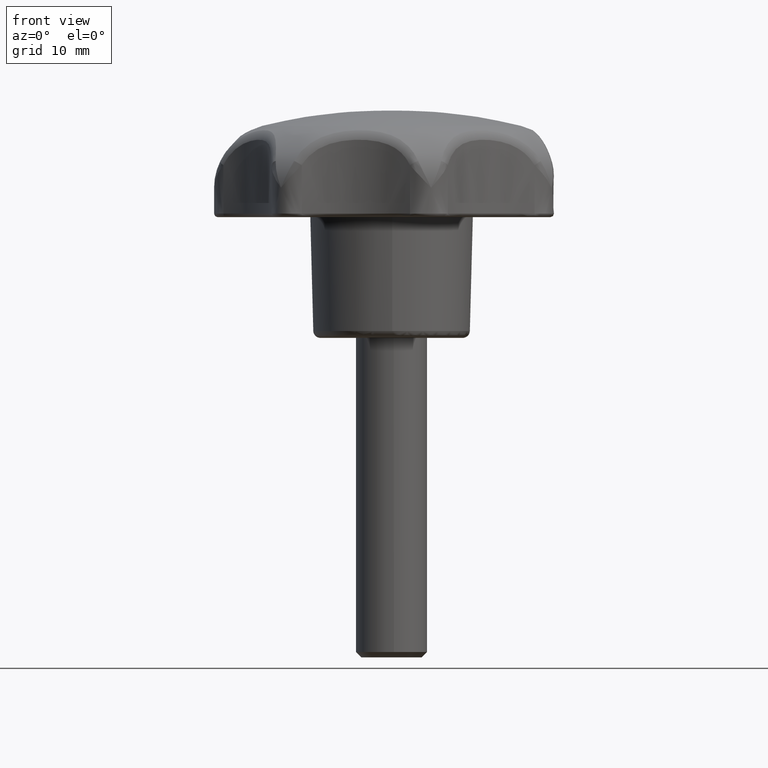
[diagram: clean part render]
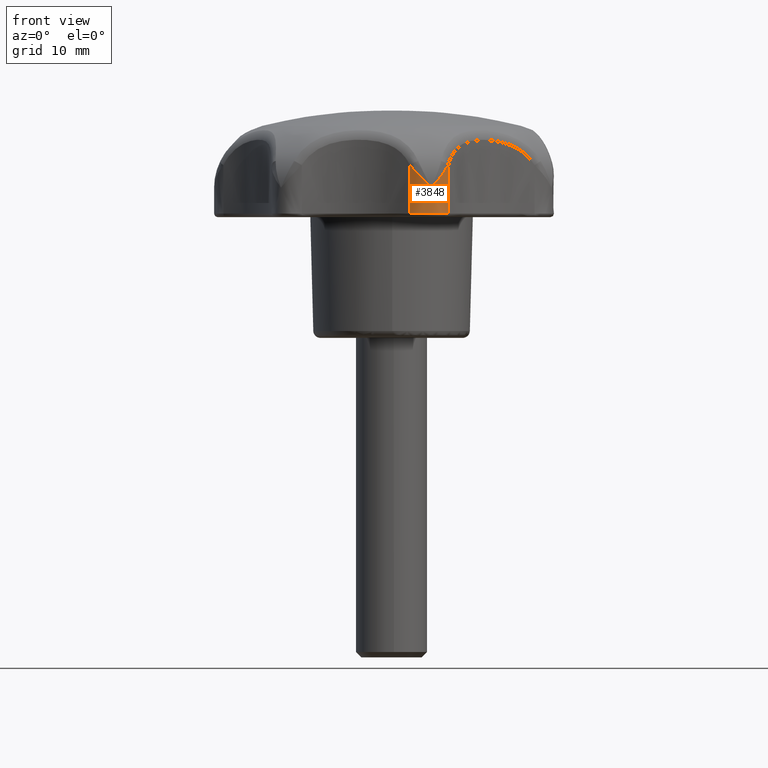
[diagram: same view with one face highlighted and labeled with its STEP entity id]
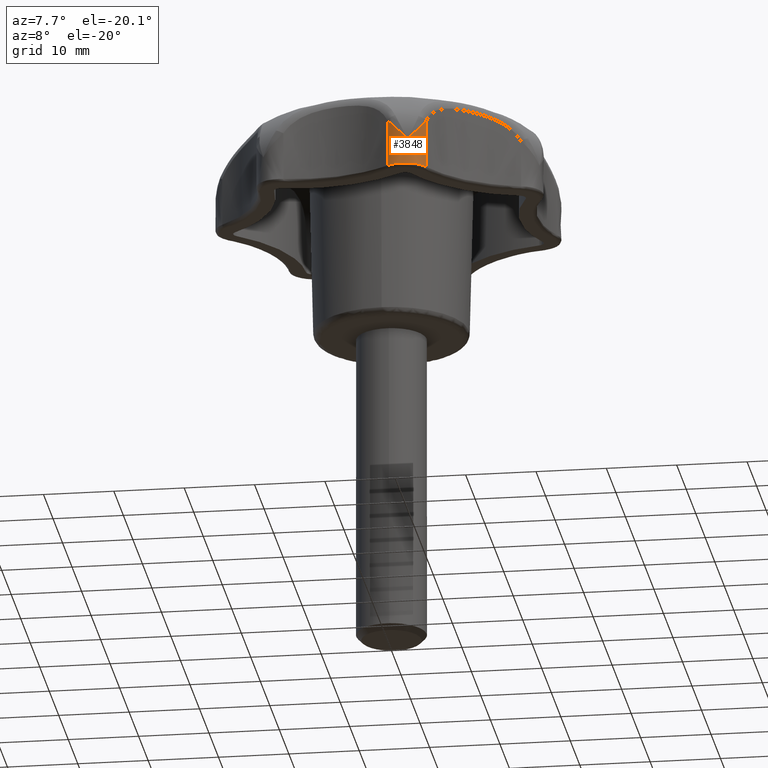
[diagram: same view with one face highlighted and labeled with its STEP entity id]
A machine part, front view. The second image highlights one B-rep face of the part: STEP entity #3848.
A second angle (auxiliary view) of the same face is appended — the face is thin or edge-on in the first view.
In plain terms, the highlighted face is a freeform B-spline surface patch.
Its self-contained STEP definition (entity closure, byte-faithful):
#3498=CARTESIAN_POINT('',(7.937591416701769,-22.479542615013202,24.301414836379049));
#3499=VERTEX_POINT('',#3498);
#3559=CARTESIAN_POINT('',(7.937591416701769,-22.479542615013202,17.500000000000000));
#3560=VERTEX_POINT('',#3559);
#3561=CARTESIAN_POINT('',(7.937591416701769,-22.479542615013202,24.301414836379049));
#3562=CARTESIAN_POINT('',(7.937591416701769,-22.479542615013202,17.500000000000000));
#3563=QUASI_UNIFORM_CURVE('',1,(#3561,#3562),.UNSPECIFIED.,.F.,.U.);
#3564=EDGE_CURVE('',#3499,#3560,#3563,.T.);
#3756=CARTESIAN_POINT('',(2.524432075677386,-23.633673129731669,24.471450207288530));
#3757=CARTESIAN_POINT('',(2.524432075677386,-23.633673129731669,17.325713744817779));
#3758=CARTESIAN_POINT('',(6.267646837527535,-26.798533926042087,24.471450207288527));
#3759=CARTESIAN_POINT('',(6.267646837527535,-26.798533926042087,17.325713744817783));
#3760=CARTESIAN_POINT('',(8.045799527634413,-22.230583223153417,24.471450207288523));
#3761=CARTESIAN_POINT('',(8.045799527634413,-22.230583223153417,17.325713744817786));
#3769=(BOUNDED_SURFACE()B_SPLINE_SURFACE(1,2,((#3756,#3758,#3760),(#3757,#3759,#3761)),.UNSPECIFIED.,.F.,.F.,.U.)B_SPLINE_SURFACE_WITH_KNOTS((2,2),(3,3),(0.0,7.145736462470748),(0.0,7.206219539010657),.UNSPECIFIED.)GEOMETRIC_REPRESENTATION_ITEM()RATIONAL_B_SPLINE_SURFACE(((1.0,0.580950307360235,0.999505588536704),(1.0,0.580950307360235,0.999505588536704)))REPRESENTATION_ITEM('')SURFACE());
#3770=ORIENTED_EDGE('',*,*,#3564,.F.);
#3771=CARTESIAN_POINT('',(5.563023274532561,-24.373197756430201,21.138975563360098));
#3772=VERTEX_POINT('',#3771);
#3773=CARTESIAN_POINT('',(7.937591416701769,-22.479542615013202,24.301414836379049));
#3774=CARTESIAN_POINT('',(7.817655866900119,-22.728591032010080,24.050994489077869));
#3775=CARTESIAN_POINT('',(7.672268808464517,-22.955769577768510,23.797851001752001));
#3776=CARTESIAN_POINT('',(7.422270986947305,-23.264890779489662,23.411183465691732));
#3777=CARTESIAN_POINT('',(7.333569711285456,-23.362623445612819,23.281137779937289));
#3778=CARTESIAN_POINT('',(7.192896523837884,-23.501129397620709,23.083959858459039));
#3779=CARTESIAN_POINT('',(7.144712872860751,-23.545956881529651,23.017858999730912));
#3780=CARTESIAN_POINT('',(7.046441600763751,-23.632381178277068,22.885662384806970));
#3781=CARTESIAN_POINT('',(6.996287158933834,-23.674046898908230,22.819471339789470));
#3782=CARTESIAN_POINT('',(6.842904361732273,-23.794434405696620,22.620529660581251));
#3783=CARTESIAN_POINT('',(6.736761843585475,-23.868554441039329,22.487410876636741));
#3784=CARTESIAN_POINT('',(6.517286037280082,-24.004479879262298,22.219711398183229));
#3785=CARTESIAN_POINT('',(6.403823989571428,-24.066321422706579,22.084992898886949));
#3786=CARTESIAN_POINT('',(6.171738304086106,-24.176731552788041,21.815416987628041));
#3787=CARTESIAN_POINT('',(6.052916736947560,-24.225420288535108,21.680319545772441));
#3788=CARTESIAN_POINT('',(5.871397837285256,-24.288426967378889,21.477408435386710));
#3789=CARTESIAN_POINT('',(5.810339419564179,-24.307759543092320,21.409722370886030));
#3790=CARTESIAN_POINT('',(5.718054850120627,-24.334218322478300,21.308169639537180));
#3791=CARTESIAN_POINT('',(5.687175236371163,-24.342615196037691,21.274312351096729));
#3792=CARTESIAN_POINT('',(5.625200098648212,-24.358558366140201,21.206595916845441));
#3793=CARTESIAN_POINT('',(5.593851009238892,-24.366161462141950,21.172641337431550));
#3794=CARTESIAN_POINT('',(5.563023260411490,-24.373197694561750,21.138975563360152));
#3795=B_SPLINE_CURVE_WITH_KNOTS('',3,(#3773,#3774,#3775,#3776,#3777,#3778,#3779,#3780,#3781,#3782,#3783,#3784,#3785,#3786,#3787,#3788,#3789,#3790,#3791,#3792,#3793,#3794),.UNSPECIFIED.,.F.,.U.,(4,2,2,2,2,2,2,2,2,2,4),(0.0,0.250000000000001,0.375000000000000,0.437500000000000,0.499999999999999,0.625000000000000,0.750000000000002,0.875000000000003,0.937500000000003,0.968750000000001,1.0),.UNSPECIFIED.);
#3796=EDGE_CURVE('',#3499,#3772,#3795,.T.);
#3797=ORIENTED_EDGE('',*,*,#3796,.T.);
#3798=CARTESIAN_POINT('',(2.601986538722750,-23.697360399521848,24.301413324988498));
#3799=VERTEX_POINT('',#3798);
#3800=CARTESIAN_POINT('',(5.563023274532561,-24.373197756430201,21.138975563360098));
#3801=CARTESIAN_POINT('',(5.532195519415103,-24.380233925194201,21.172641328880019));
#3802=CARTESIAN_POINT('',(5.500652114124204,-24.386985630760350,21.206595899650850));
#3803=CARTESIAN_POINT('',(5.437896978146154,-24.399511332277658,21.274312316718170));
#3804=CARTESIAN_POINT('',(5.406432148632210,-24.405344171580520,21.308169596564898));
#3805=CARTESIAN_POINT('',(5.311806614613941,-24.421546405860258,21.409722302157778));
#3806=CARTESIAN_POINT('',(5.248406807129870,-24.430620610297201,21.477408349522751));
#3807=CARTESIAN_POINT('',(5.057526405298966,-24.452611651871461,21.680319408474489));
#3808=CARTESIAN_POINT('',(4.929346654510943,-24.460299365339282,21.815416816514869));
#3809=CARTESIAN_POINT('',(4.672339583659102,-24.461521493238230,22.084992659297971));
#3810=CARTESIAN_POINT('',(4.543281803623437,-24.455033535452390,22.219711125020758));
#3811=CARTESIAN_POINT('',(4.286565160927586,-24.427795958072871,22.487410537900050));
#3812=CARTESIAN_POINT('',(4.158774609808122,-24.407069643692100,22.620529289130090));
#3813=CARTESIAN_POINT('',(3.968347349268292,-24.365154581341770,22.819470919108820));
#3814=CARTESIAN_POINT('',(3.905081695188530,-24.349376272519169,22.885661947690000));
#3815=CARTESIAN_POINT('',(3.779044271555911,-24.314149003895938,23.017858529639572));
#3816=CARTESIAN_POINT('',(3.716182400468011,-24.294666952733081,23.083959372017759));
#3817=CARTESIAN_POINT('',(3.529344796219148,-24.230913252537270,23.281137249508362));
#3818=CARTESIAN_POINT('',(3.407023118124390,-24.181345235697979,23.411182906140588));
#3819=CARTESIAN_POINT('',(3.047660269582023,-24.011306752413638,23.797850354988331));
#3820=CARTESIAN_POINT('',(2.818102018807840,-23.869707121788331,24.050993784431331));
#3821=CARTESIAN_POINT('',(2.601986352836473,-23.697360714445701,24.301413308761450));
#3822=B_SPLINE_CURVE_WITH_KNOTS('',3,(#3800,#3801,#3802,#3803,#3804,#3805,#3806,#3807,#3808,#3809,#3810,#3811,#3812,#3813,#3814,#3815,#3816,#3817,#3818,#3819,#3820,#3821),.UNSPECIFIED.,.F.,.U.,(4,2,2,2,2,2,2,2,2,2,4),(0.0,0.031249999999999,0.062499999999999,0.124999999999999,0.250000000000000,0.375000000000001,0.500000000000002,0.562500000000002,0.625000000000002,0.750000000000001,1.0),.UNSPECIFIED.);
#3823=EDGE_CURVE('',#3772,#3799,#3822,.T.);
#3824=ORIENTED_EDGE('',*,*,#3823,.T.);
#3825=CARTESIAN_POINT('',(2.601986538722750,-23.697360399521848,17.500000000000000));
#3826=VERTEX_POINT('',#3825);
#3827=CARTESIAN_POINT('',(2.601986538722750,-23.697360399521848,24.301413324988498));
#3828=CARTESIAN_POINT('',(2.601986538722750,-23.697360399521848,17.500000000000000));
#3829=QUASI_UNIFORM_CURVE('',1,(#3827,#3828),.UNSPECIFIED.,.F.,.U.);
#3830=EDGE_CURVE('',#3799,#3826,#3829,.T.);
#3831=ORIENTED_EDGE('',*,*,#3830,.T.);
#3832=CARTESIAN_POINT('',(2.601986538722750,-23.697360399521848,17.500000000000000));
#3833=CARTESIAN_POINT('',(2.870557187156622,-23.911727350924998,17.499999999999989));
#3834=CARTESIAN_POINT('',(3.328411170604976,-24.177193749608879,17.500000000000028));
#3835=CARTESIAN_POINT('',(4.096306768128467,-24.416062529427901,17.500000000000000));
#3836=CARTESIAN_POINT('',(4.751820500925597,-24.485243633363350,17.499999999999961));
#3837=CARTESIAN_POINT('',(5.487190938904062,-24.412799409760812,17.500000000000082));
#3838=CARTESIAN_POINT('',(6.243550381194003,-24.183466566747061,17.499999999999950));
#3839=CARTESIAN_POINT('',(6.949189924427632,-23.753763919066650,17.500000000000028));
#3840=CARTESIAN_POINT('',(7.542045598417404,-23.160742140961592,17.499999999999989));
#3841=CARTESIAN_POINT('',(7.816960027044574,-22.730191419171199,17.499999999999989));
#3842=CARTESIAN_POINT('',(7.937591416701769,-22.479542615013202,17.500000000000000));
#3843=B_SPLINE_CURVE_WITH_KNOTS('',3,(#3832,#3833,#3834,#3835,#3836,#3837,#3838,#3839,#3840,#3841,#3842),.UNSPECIFIED.,.F.,.U.,(4,1,1,1,1,1,1,1,4),(0.000000139443467,1.030831613740265,1.570809718807811,2.405319839541648,2.994381569697853,3.779752146295428,4.761515889452972,5.448750549216134,6.283236490251086),.UNSPECIFIED.);
#3844=EDGE_CURVE('',#3826,#3560,#3843,.T.);
#3845=ORIENTED_EDGE('',*,*,#3844,.T.);
#3846=EDGE_LOOP('',(#3770,#3797,#3824,#3831,#3845));
#3847=FACE_OUTER_BOUND('',#3846,.T.);
#3848=ADVANCED_FACE('',(#3847),#3769,.T.);